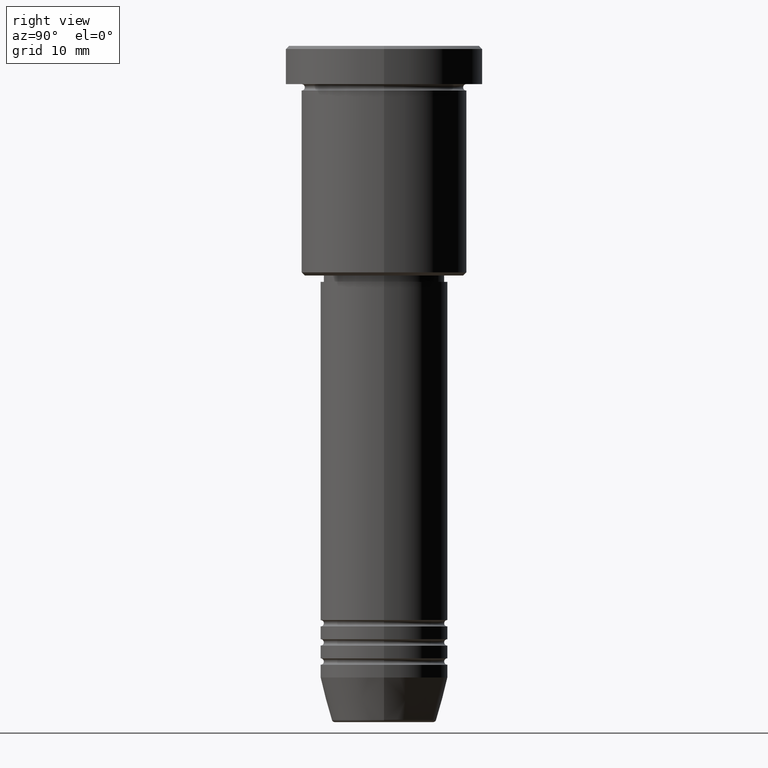
[diagram: clean part render]
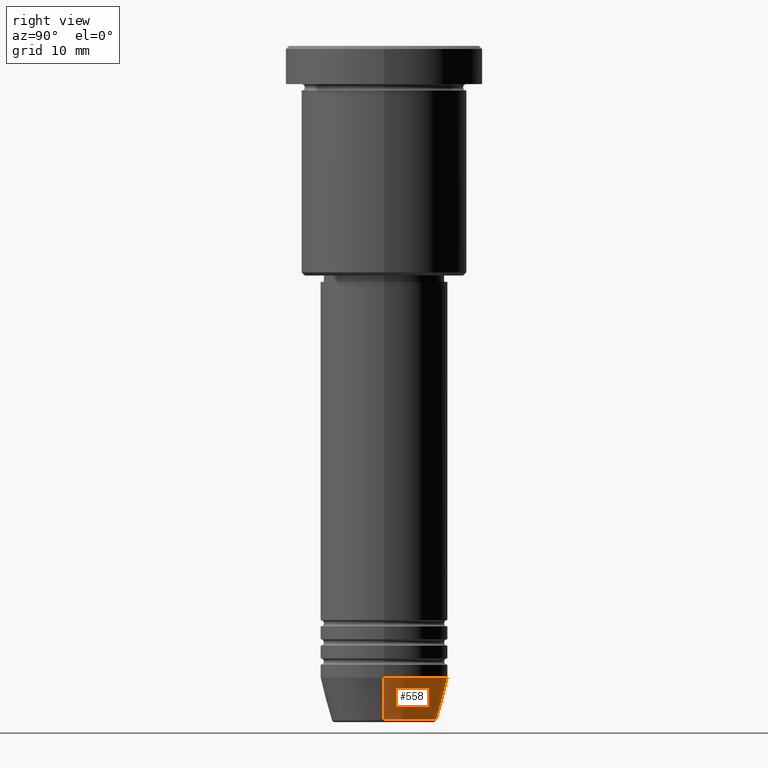
[diagram: same view with one face highlighted and labeled with its STEP entity id]
A machine part, right view. The second image highlights one B-rep face of the part: STEP entity #558.
In plain terms, the highlighted conical surface has half-angle 15 deg.
Its self-contained STEP definition (entity closure, byte-faithful):
#3 = CARTESIAN_POINT ( 'NONE',  ( 0.000000000000000000, 0.000000000000000000, -99.00000000000000000 ) ) ;
#10 = AXIS2_PLACEMENT_3D ( 'NONE', #487, #855, #388 ) ;
#31 = LINE ( 'NONE', #399, #436 ) ;
#71 = CARTESIAN_POINT ( 'NONE',  ( 10.00000000000000000, 0.000000000000000000, -99.00000000000000000 ) ) ;
#80 = EDGE_CURVE ( 'NONE', #269, #575, #508, .T. ) ;
#103 = AXIS2_PLACEMENT_3D ( 'NONE', #311, #391, #188 ) ;
#111 = DIRECTION ( 'NONE',  ( 1.000000000000000000, 0.000000000000000000, 0.000000000000000000 ) ) ;
#188 = DIRECTION ( 'NONE',  ( 1.000000000000000000, 0.000000000000000000, 0.000000000000000000 ) ) ;
#189 = ORIENTED_EDGE ( 'NONE', *, *, #192, .F. ) ;
#192 = EDGE_CURVE ( 'NONE', #269, #879, #408, .T. ) ;
#209 = ORIENTED_EDGE ( 'NONE', *, *, #502, .T. ) ;
#240 = CARTESIAN_POINT ( 'NONE',  ( 10.00000000000000000, 0.000000000000000000, -99.00000000000000000 ) ) ;
#269 = VERTEX_POINT ( 'NONE', #431 ) ;
#306 = ORIENTED_EDGE ( 'NONE', *, *, #429, .F. ) ;
#311 = CARTESIAN_POINT ( 'NONE',  ( 0.000000000000000000, 0.000000000000000000, -99.00000000000000000 ) ) ;
#366 = EDGE_LOOP ( 'NONE', ( #474, #209, #306, #189 ) ) ;
#370 = DIRECTION ( 'NONE',  ( -0.000000000000000000, -0.000000000000000000, 1.000000000000000000 ) ) ;
#388 = DIRECTION ( 'NONE',  ( 1.000000000000000000, 0.000000000000000000, 0.000000000000000000 ) ) ;
#391 = DIRECTION ( 'NONE',  ( -0.000000000000000000, -0.000000000000000000, 1.000000000000000000 ) ) ;
#399 = CARTESIAN_POINT ( 'NONE',  ( -10.00000000000000000, 1.224646799147353256E-15, -99.00000000000000000 ) ) ;
#408 = LINE ( 'NONE', #240, #649 ) ;
#429 = EDGE_CURVE ( 'NONE', #879, #628, #670, .T. ) ;
#431 = CARTESIAN_POINT ( 'NONE',  ( 8.223655072137191269, 0.000000000000000000, -105.6294095225512564 ) ) ;
#436 = VECTOR ( 'NONE', #1026, 1000.000000000000000 ) ;
#474 = ORIENTED_EDGE ( 'NONE', *, *, #80, .T. ) ;
#479 = AXIS2_PLACEMENT_3D ( 'NONE', #3, #370, #111 ) ;
#487 = CARTESIAN_POINT ( 'NONE',  ( 0.000000000000000000, 0.000000000000000000, -105.6294095225512564 ) ) ;
#502 = EDGE_CURVE ( 'NONE', #575, #628, #31, .T. ) ;
#508 = CIRCLE ( 'NONE', #10, 8.223655072137191269 ) ;
#558 = ADVANCED_FACE ( 'NONE', ( #1128 ), #630, .T. ) ;
#575 = VERTEX_POINT ( 'NONE', #677 ) ;
#628 = VERTEX_POINT ( 'NONE', #965 ) ;
#630 = CONICAL_SURFACE ( 'NONE', #103, 10.00000000000000000, 0.2617993877991500740 ) ;
#649 = VECTOR ( 'NONE', #1150, 1000.000000000000000 ) ;
#670 = CIRCLE ( 'NONE', #479, 10.00000000000000000 ) ;
#677 = CARTESIAN_POINT ( 'NONE',  ( -8.223655072137191269, 1.115877042642912054E-15, -105.6294095225512564 ) ) ;
#855 = DIRECTION ( 'NONE',  ( -0.000000000000000000, -0.000000000000000000, 1.000000000000000000 ) ) ;
#879 = VERTEX_POINT ( 'NONE', #71 ) ;
#965 = CARTESIAN_POINT ( 'NONE',  ( -10.00000000000000000, 1.224646799147353256E-15, -99.00000000000000000 ) ) ;
#1026 = DIRECTION ( 'NONE',  ( -0.2588190451025213501, 3.169619151431772337E-17, 0.9659258262890680902 ) ) ;
#1128 = FACE_OUTER_BOUND ( 'NONE', #366, .T. ) ;
#1150 = DIRECTION ( 'NONE',  ( 0.2588190451025213501, 0.000000000000000000, 0.9659258262890680902 ) ) ;